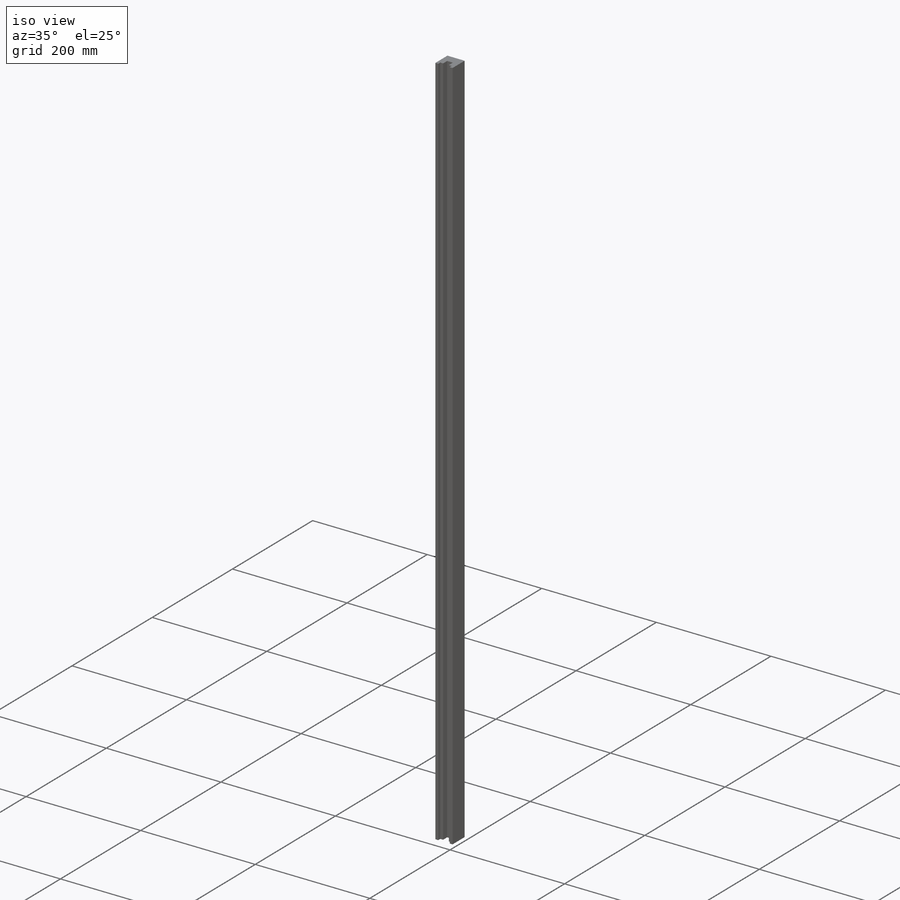
[diagram: iso view]
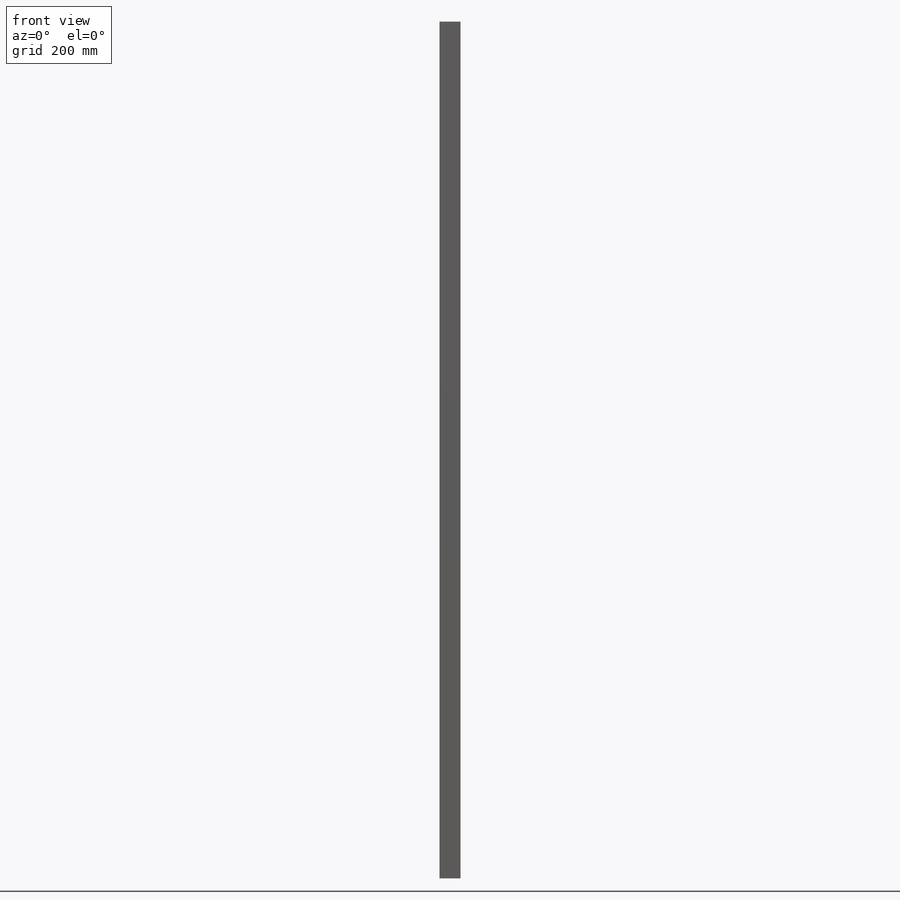
[diagram: front view]
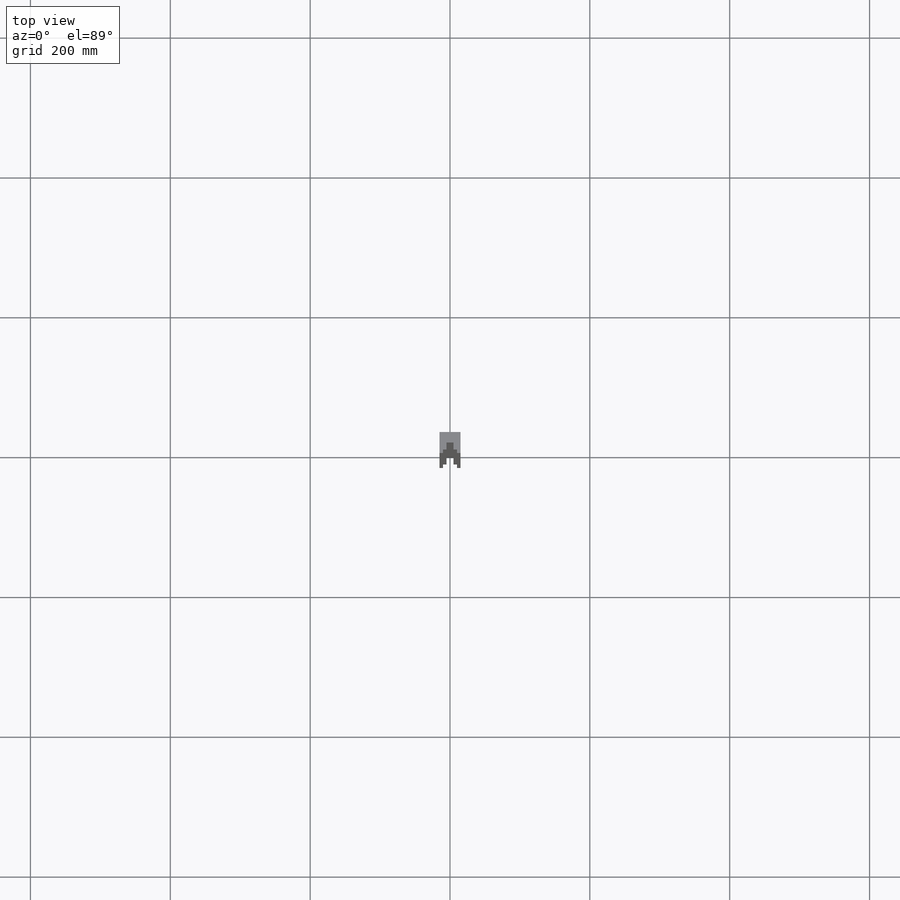
[diagram: top view]
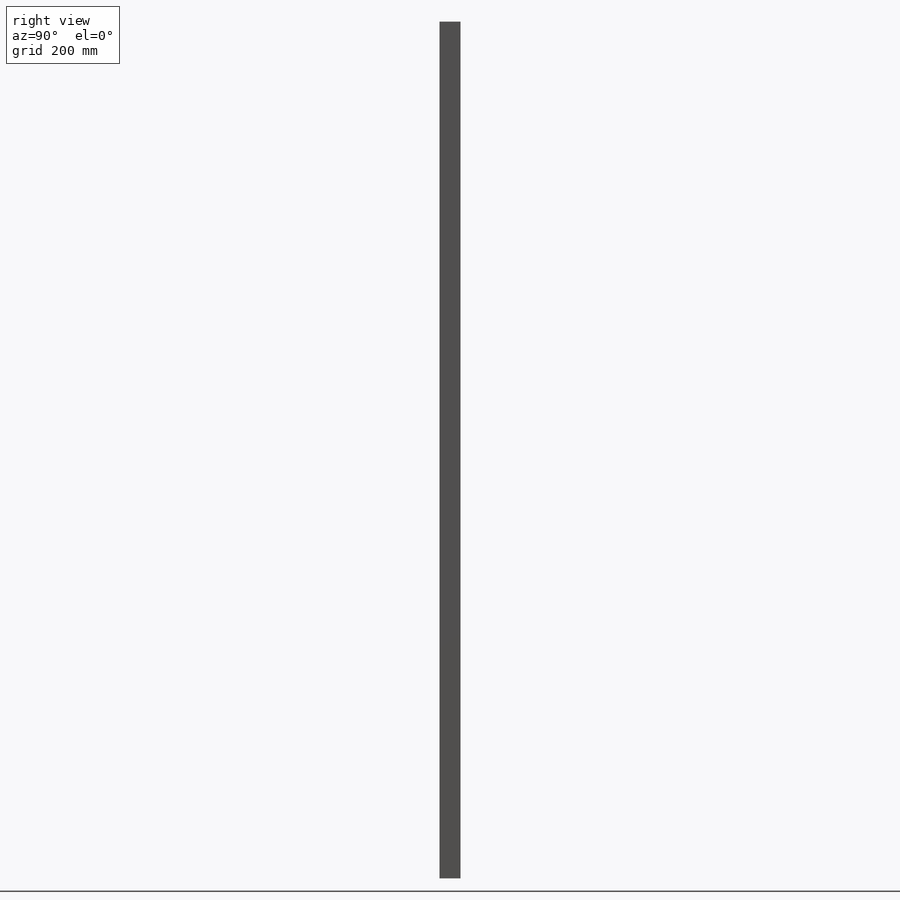
[diagram: right view]
SOLIDWORKS PART (.sldprt)
format: sldprt  version: not decoded by parser v0  size: 286,208 bytes
history: native  units: mm
features: sketch x8, cut_extrude x3, thread x2, material x1, extrude x1, hole x1 (+11 scaffold rows collapsed)
feature tree (27):
  scaffold x11  (default folders/planes/origin — collapsed)
  material  "Material <not specified>"
  sketch  "Sketch1"  dims[D1=30.0mm D2=30.0mm]
  extrude  "Boss-Extrude1"  Depth=1225mm
  sketch  "Sketch2"  dims[D1=20.0mm D2=5.0mm D3=5.0mm]
  cut_extrude  "Cut-Extrude1"  [1 undecoded]
  sketch  "Sketch3"  dims[D1=10.0mm D2=10.0mm D3=5.0mm]
  cut_extrude  "Cut-Extrude2"  [1 undecoded]
  sketch  "Sketch4"  dims[D1=1200.0mm D2=1000.0mm D3=800.0mm D4=700.0mm]
  sketch  "Sketch5"  dims[D1=200.0mm]
  sketch  "Sketch6"  dims[c1.D1=8.0mm c1.D2=25.0mm c1.D3=15.0mm c2.D2=25.0mm c2.D4=200.0mm c2.D5=200.0mm c2.D6=100.0mm c2.D7=50.0mm c2.D8=50.0mm c2.D9=50.0mm c2.D10=50.0mm c2.D11=50.0mm c2.D12=50.0mm c2.D13=50.0mm c2.D14=50.0mm c2.D15=50.0mm c2.D16=50.0mm]
  cut_extrude  "Cut-Extrude3"  Depth=3mm
  hole  "M6x1.0 Tapped Hole1"  Diameter=5mm Depth=15mm
  sketch  "Sketch8"  dims[D1=15.0mm D2=50.0mm D3=15.0mm D4=25.0mm]
  sketch  "Sketch7"  dims[hole-wizard template sketch: 47 standard entries collapsed; hole parameters kept: c15.Tap Drill Depth=15.0mm c15.D3=~14.816244mm c15.Drill Angle=118.0deg]
  thread  "Hole Thread1"  Diameter=10mm  [1 undecoded]
  thread  "Hole Thread2"  Diameter=10mm  [1 undecoded]
decode coverage: 13 of 15 modeling features carry decoded parameters
note: ~ marks probable driven/reference dimensions
note: 4 parameter values undecoded
note: suppression state not decoded; provenance and decode notes live in map.json
